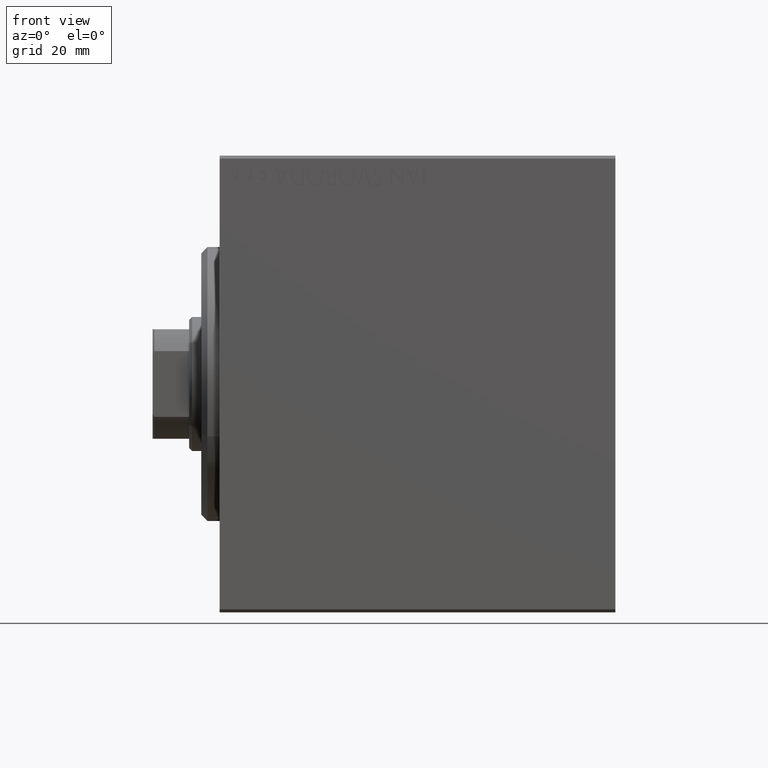
[diagram: clean part render]
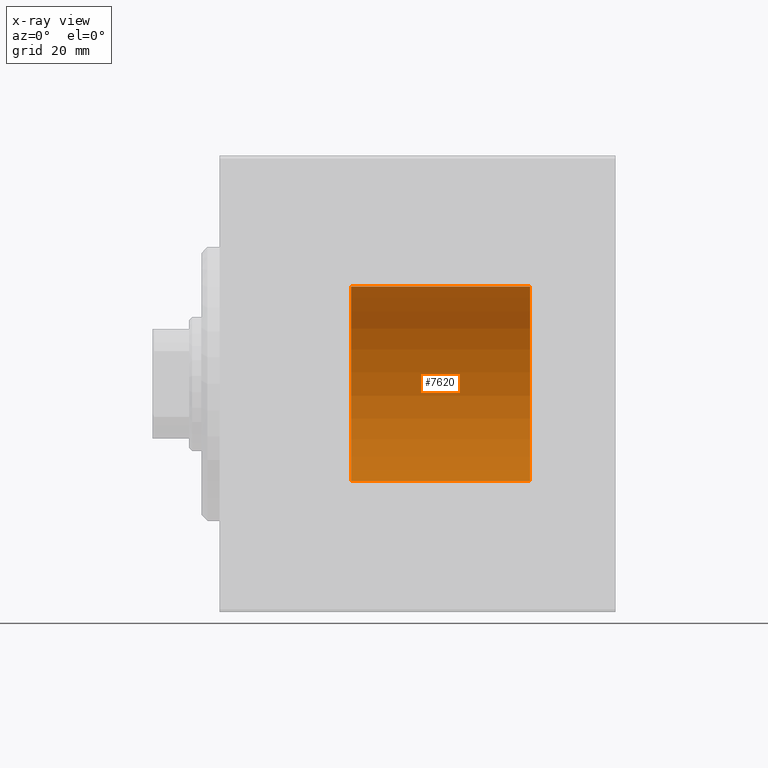
[diagram: x-ray — body ghosted, one internal face saturated and labeled with its STEP entity id]
A machine part, front view, then the same camera in x-ray: the body is ghosted and one INTERNAL B-rep face — a face not visible from any outside direction — is saturated and labeled: STEP entity #7620.
In plain terms, the highlighted cylindrical surface (partial cylindrical patch) has radius 16 mm, axis along (-1, -0, -0).
Its self-contained STEP definition (entity closure, byte-faithful):
#339 = AXIS2_PLACEMENT_3D ( 'NONE', #36256, #12695, #6087 ) ;
#1200 = AXIS2_PLACEMENT_3D ( 'NONE', #31562, #27814, #18554 ) ;
#1314 = CARTESIAN_POINT ( 'NONE',  ( 51.00000000000000000, 0.000000000000000000, 16.00000000000000000 ) ) ;
#1983 = VECTOR ( 'NONE', #41186, 1000.000000000000000 ) ;
#2222 = EDGE_CURVE ( 'NONE', #16901, #6052, #40924, .T. ) ;
#3111 = EDGE_CURVE ( 'NONE', #17073, #16901, #26390, .T. ) ;
#4856 = AXIS2_PLACEMENT_3D ( 'NONE', #21628, #18322, #14789 ) ;
#5102 = CARTESIAN_POINT ( 'NONE',  ( 21.60000000000000142, 0.000000000000000000, 16.00000000000000000 ) ) ;
#5107 = FACE_OUTER_BOUND ( 'NONE', #23648, .T. ) ;
#6052 = VERTEX_POINT ( 'NONE', #18250 ) ;
#6087 = DIRECTION ( 'NONE',  ( 0.000000000000000000, 0.000000000000000000, 1.000000000000000000 ) ) ;
#7620 = ADVANCED_FACE ( 'NONE', ( #5107 ), #8413, .F. ) ;
#7873 = CARTESIAN_POINT ( 'NONE',  ( 51.00000000000000000, 1.959434878635765131E-15, -16.00000000000000000 ) ) ;
#8413 = CYLINDRICAL_SURFACE ( 'NONE', #1200, 16.00000000000000000 ) ;
#12695 = DIRECTION ( 'NONE',  ( -1.000000000000000000, 0.000000000000000000, 0.000000000000000000 ) ) ;
#14541 = LINE ( 'NONE', #1314, #1983 ) ;
#14789 = DIRECTION ( 'NONE',  ( 0.000000000000000000, 0.000000000000000000, 1.000000000000000000 ) ) ;
#15436 = ORIENTED_EDGE ( 'NONE', *, *, #39706, .T. ) ;
#15441 = ORIENTED_EDGE ( 'NONE', *, *, #3111, .F. ) ;
#16901 = VERTEX_POINT ( 'NONE', #29819 ) ;
#17073 = VERTEX_POINT ( 'NONE', #36379 ) ;
#18250 = CARTESIAN_POINT ( 'NONE',  ( 21.60000000000000142, 1.959434878635765131E-15, -16.00000000000000000 ) ) ;
#18322 = DIRECTION ( 'NONE',  ( -1.000000000000000000, 0.000000000000000000, 0.000000000000000000 ) ) ;
#18554 = DIRECTION ( 'NONE',  ( 0.000000000000000000, 0.000000000000000000, 1.000000000000000000 ) ) ;
#19061 = ORIENTED_EDGE ( 'NONE', *, *, #34511, .T. ) ;
#21628 = CARTESIAN_POINT ( 'NONE',  ( 21.60000000000000142, 0.000000000000000000, 0.000000000000000000 ) ) ;
#23648 = EDGE_LOOP ( 'NONE', ( #37218, #15441, #19061, #15436 ) ) ;
#23869 = CIRCLE ( 'NONE', #4856, 16.00000000000000000 ) ;
#24068 = VERTEX_POINT ( 'NONE', #5102 ) ;
#26390 = CIRCLE ( 'NONE', #339, 16.00000000000000000 ) ;
#27814 = DIRECTION ( 'NONE',  ( -1.000000000000000000, -0.000000000000000000, -0.000000000000000000 ) ) ;
#29819 = CARTESIAN_POINT ( 'NONE',  ( 51.00000000000000000, 1.959434878635765131E-15, -16.00000000000000000 ) ) ;
#31562 = CARTESIAN_POINT ( 'NONE',  ( 51.00000000000000000, 0.000000000000000000, 0.000000000000000000 ) ) ;
#31669 = DIRECTION ( 'NONE',  ( -1.000000000000000000, -0.000000000000000000, -0.000000000000000000 ) ) ;
#34511 = EDGE_CURVE ( 'NONE', #17073, #24068, #14541, .T. ) ;
#36256 = CARTESIAN_POINT ( 'NONE',  ( 51.00000000000000000, 0.000000000000000000, 0.000000000000000000 ) ) ;
#36379 = CARTESIAN_POINT ( 'NONE',  ( 51.00000000000000000, 0.000000000000000000, 16.00000000000000000 ) ) ;
#37218 = ORIENTED_EDGE ( 'NONE', *, *, #2222, .F. ) ;
#39706 = EDGE_CURVE ( 'NONE', #24068, #6052, #23869, .T. ) ;
#40924 = LINE ( 'NONE', #7873, #41172 ) ;
#41172 = VECTOR ( 'NONE', #31669, 1000.000000000000000 ) ;
#41186 = DIRECTION ( 'NONE',  ( -1.000000000000000000, -0.000000000000000000, -0.000000000000000000 ) ) ;